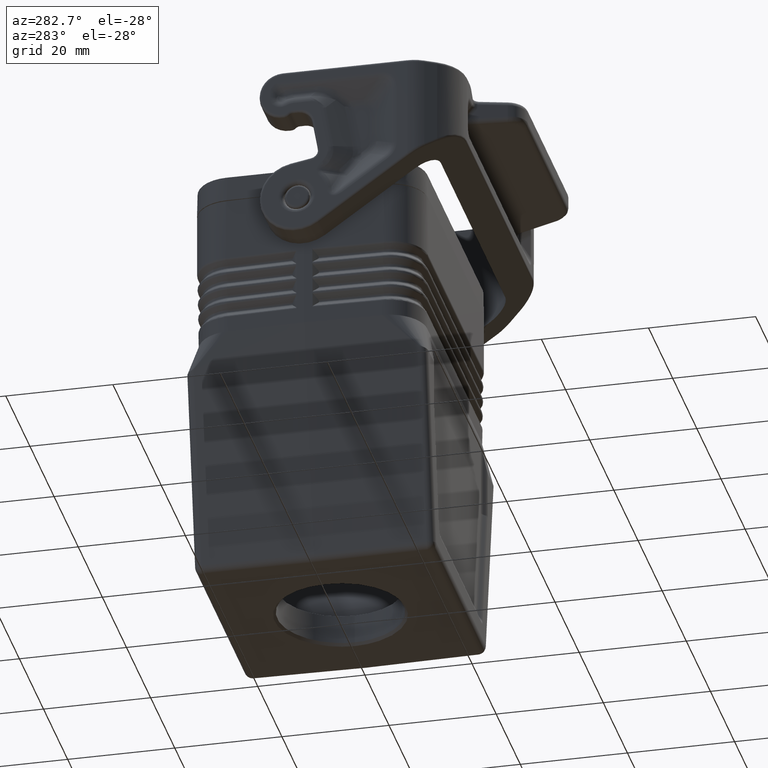
[diagram: clean part render]
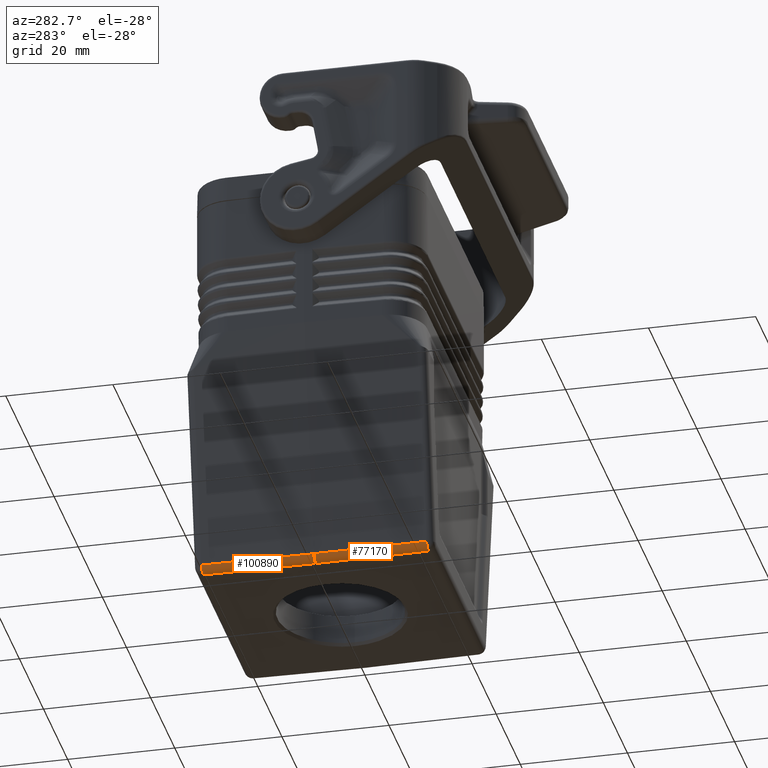
[diagram: same view with one multi-face feature highlighted, each face labeled with its STEP entity id]
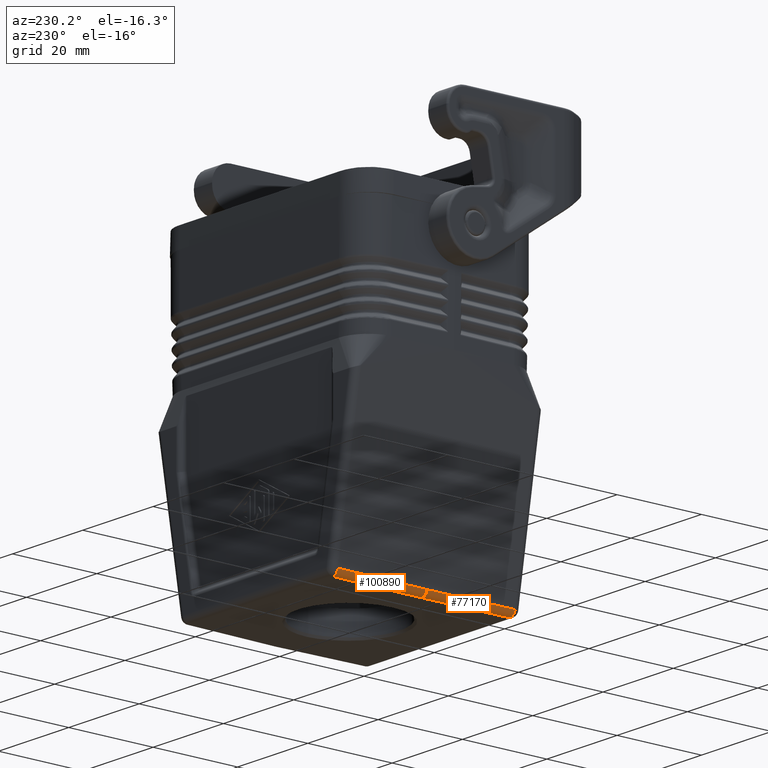
[diagram: same view with one multi-face feature highlighted, each face labeled with its STEP entity id]
A machine part, auxiliary view. The highlighted faces form ONE feature: a constant-radius fillet chain: 2 tangent blend faces with common blend radius 1.5 mm. The faces share edges in the B-rep.
A second angle (auxiliary view) of the same feature is appended — it is thin or edge-on in the first view.
Their STEP definitions:
[1] entity #100890 (Cylinder):
#8160=CARTESIAN_POINT('',(28.3609881735701,70.700985577655,
71.8166215434117));
#8170=VERTEX_POINT('',#8160);
#8200=CARTESIAN_POINT('',(98.7350661503878,71.2163146508935,
72.430766817812));
#8210=DIRECTION('',(-0.999935116152516,-0.00732223641885956,
-0.00872630155800004));
#8220=VECTOR('',#8210,1.);
#8230=LINE('',#8200,#8220);
#8240=CARTESIAN_POINT('',(49.3740779768175,70.8548583729441,72.));
#8250=VERTEX_POINT('',#8240);
#8260=EDGE_CURVE('',#8250,#8170,#8230,.T.);
#70300=CARTESIAN_POINT('',(28.3609881735701,72.1781409594809,
70.5771410073301));
#70310=VERTEX_POINT('',#70300);
#71870=CARTESIAN_POINT('',(49.374077976818,72.33201375477,
70.7605194639183));
#71880=VERTEX_POINT('',#71870);
#71930=CARTESIAN_POINT('',(98.7350661503878,72.6934700327194,
71.1912862817303));
#71940=DIRECTION('',(-0.999935116152516,-0.00732223641885956,
-0.00872630155800004));
#71950=VECTOR('',#71940,1.);
#71960=LINE('',#71930,#71950);
#71970=EDGE_CURVE('',#71880,#70310,#71960,.T.);
#76930=CARTESIAN_POINT('',(49.3740779768177,70.8547625200907,
70.4999428824214));
#76940=DIRECTION('',(-1.,0.,0.));
#76950=DIRECTION('',(0.,-0.642787609688035,-0.766044443117723));
#76960=AXIS2_PLACEMENT_3D('',#76930,#76940,#76950);
#76970=ELLIPSE('',#76960,1.50009733208651,1.5);
#76980=EDGE_CURVE('',#8250,#71880,#76970,.T.);
#100720=CARTESIAN_POINT('',(98.7481559536354,71.2163146508935,
70.9308239332157));
#100730=DIRECTION('',(-0.999935116152516,-0.00732223641885956,
-0.00872630155800004));
#100740=DIRECTION('',(0.00872653549837393,0.,-0.999961923064171));
#100750=AXIS2_PLACEMENT_3D('',#100720,#100730,#100740);
#100760=CYLINDRICAL_SURFACE('',#100750,1.5);
#100770=CARTESIAN_POINT('',(28.3740779768177,70.700985577655,
70.3166786588155));
#100780=DIRECTION('',(0.999935116152516,0.00732223641885956,
0.00872630155800004));
#100790=DIRECTION('',(0.00872653549837394,-2.98625322746653E-17,
-0.999961923064171));
#100800=AXIS2_PLACEMENT_3D('',#100770,#100780,#100790);
#100810=CIRCLE('',#100800,1.5);
#100820=EDGE_CURVE('',#70310,#8170,#100810,.T.);
#100830=ORIENTED_EDGE('',*,*,#100820,.T.);
#100840=ORIENTED_EDGE('',*,*,#71970,.T.);
#100850=ORIENTED_EDGE('',*,*,#76980,.T.);
#100860=ORIENTED_EDGE('',*,*,#8260,.F.);
#100870=EDGE_LOOP('',(#100860,#100850,#100840,#100830));
#100880=FACE_OUTER_BOUND('',#100870,.T.);
#100890=ADVANCED_FACE('',(#100880),#100760,.T.);
[2] entity #77170 (Cylinder):
#8240=CARTESIAN_POINT('',(49.3740779768175,70.8548583729441,72.));
#8250=VERTEX_POINT('',#8240);
#71870=CARTESIAN_POINT('',(49.374077976818,72.33201375477,
70.7605194639183));
#71880=VERTEX_POINT('',#71870);
#76170=CARTESIAN_POINT('',(0.0130898032475609,71.2163146508935,
72.430766817812));
#76180=DIRECTION('',(0.999935116152516,-0.00732223641885956,
-0.00872630155800004));
#76190=VECTOR('',#76180,1.);
#76200=LINE('',#76170,#76190);
#76210=CARTESIAN_POINT('',(70.3871677800653,70.700985577655,
71.8166215434117));
#76220=VERTEX_POINT('',#76210);
#76230=EDGE_CURVE('',#8250,#76220,#76200,.T.);
#76870=CARTESIAN_POINT('',(0.,71.2163146508935,70.9308239332157));
#76880=DIRECTION('',(0.999935116152516,-0.00732223641885956,
-0.00872630155800004));
#76890=DIRECTION('',(-0.00872653549837393,0.,-0.999961923064171));
#76900=AXIS2_PLACEMENT_3D('',#76870,#76880,#76890);
#76910=CYLINDRICAL_SURFACE('',#76900,1.5);
#76920=ORIENTED_EDGE('',*,*,#76230,.T.);
#76930=CARTESIAN_POINT('',(49.3740779768177,70.8547625200907,
70.4999428824214));
#76940=DIRECTION('',(-1.,0.,0.));
#76950=DIRECTION('',(0.,-0.642787609688035,-0.766044443117723));
#76960=AXIS2_PLACEMENT_3D('',#76930,#76940,#76950);
#76970=ELLIPSE('',#76960,1.50009733208651,1.5);
#76980=EDGE_CURVE('',#8250,#71880,#76970,.T.);
#76990=ORIENTED_EDGE('',*,*,#76980,.F.);
#77000=CARTESIAN_POINT('',(0.0130898032475609,72.6934700327194,
71.1912862817303));
#77010=DIRECTION('',(0.999935116152516,-0.00732223641885956,
-0.00872630155800004));
#77020=VECTOR('',#77010,1.);
#77030=LINE('',#77000,#77020);
#77040=CARTESIAN_POINT('',(70.3871677800653,72.1781409594809,
70.5771410073301));
#77050=VERTEX_POINT('',#77040);
#77060=EDGE_CURVE('',#71880,#77050,#77030,.T.);
#77070=ORIENTED_EDGE('',*,*,#77060,.F.);
#77080=CARTESIAN_POINT('',(70.3740779768177,70.700985577655,
70.3166786588155));
#77090=DIRECTION('',(0.999935116152516,-0.00732223641885956,
-0.00872630155800004));
#77100=DIRECTION('',(-0.00872653549837394,-2.98625322746653E-17,
-0.999961923064171));
#77110=AXIS2_PLACEMENT_3D('',#77080,#77090,#77100);
#77120=CIRCLE('',#77110,1.5);
#77130=EDGE_CURVE('',#77050,#76220,#77120,.T.);
#77140=ORIENTED_EDGE('',*,*,#77130,.F.);
#77150=EDGE_LOOP('',(#77140,#77070,#76990,#76920));
#77160=FACE_OUTER_BOUND('',#77150,.T.);
#77170=ADVANCED_FACE('',(#77160),#76910,.T.);